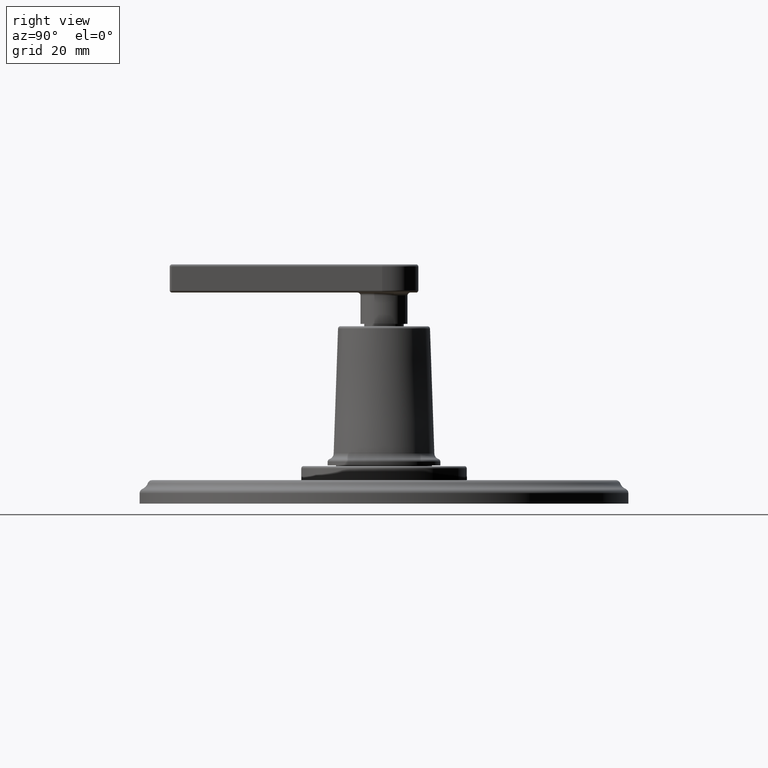
[diagram: clean part render]
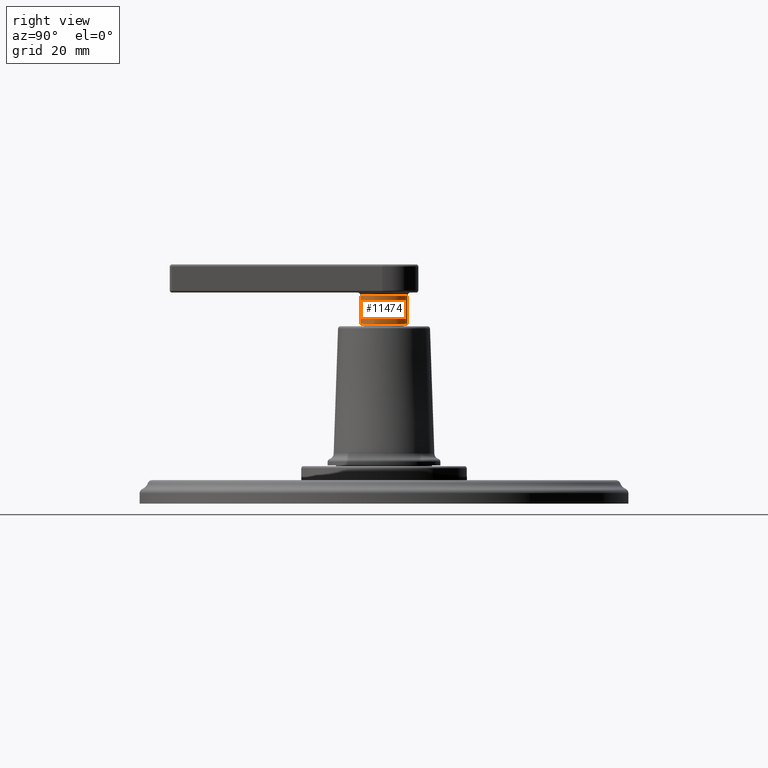
[diagram: same view with one face highlighted and labeled with its STEP entity id]
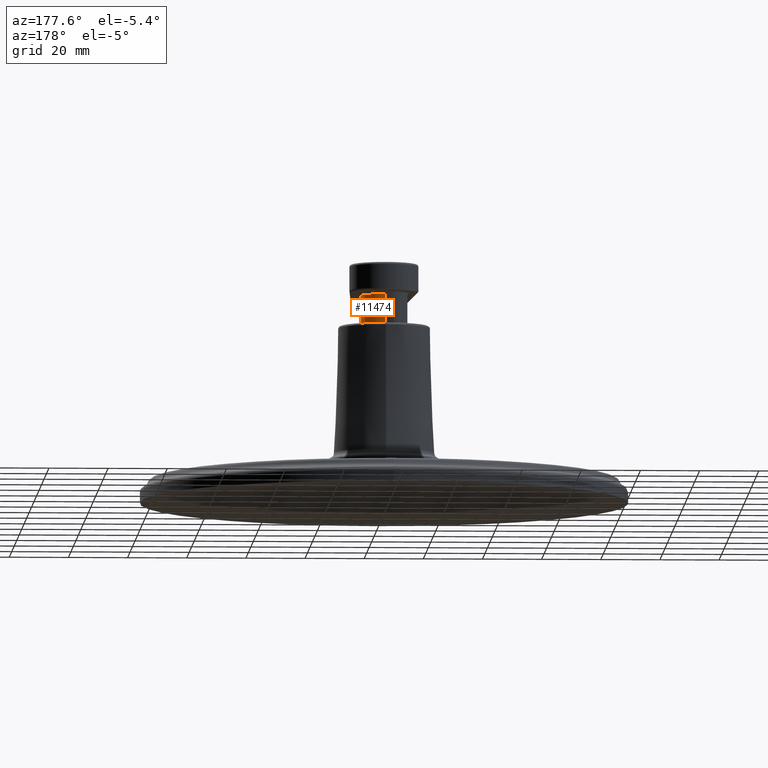
[diagram: same view with one face highlighted and labeled with its STEP entity id]
A machine part, right view. The second image highlights one B-rep face of the part: STEP entity #11474.
A second angle (auxiliary view) of the same face is appended — the face is thin or edge-on in the first view.
In plain terms, the highlighted cylindrical surface (edge-blend (fillet) strip) has radius 7.9375 mm, axis along (0, 0, -1).
Its self-contained STEP definition (entity closure, byte-faithful):
#3995=CARTESIAN_POINT('',(0.E0,0.E0,2.768E0));
#3996=DIRECTION('',(0.E0,0.E0,1.E0));
#3997=DIRECTION('',(0.E0,-1.E0,0.E0));
#3998=AXIS2_PLACEMENT_3D('',#3995,#3996,#3997);
#4000=DIRECTION('',(-3.757023223274E-12,0.E0,1.E0));
#4001=VECTOR('',#4000,3.77E-1);
#4002=CARTESIAN_POINT('',(0.E0,3.125E-1,2.391E0));
#4003=LINE('',#4002,#4001);
#4004=CARTESIAN_POINT('',(0.E0,0.E0,2.391E0));
#4005=DIRECTION('',(0.E0,0.E0,1.E0));
#4006=DIRECTION('',(0.E0,-1.E0,0.E0));
#4007=AXIS2_PLACEMENT_3D('',#4004,#4005,#4006);
#4009=DIRECTION('',(3.756627684633E-12,0.E0,1.E0));
#4010=VECTOR('',#4009,3.77E-1);
#4011=CARTESIAN_POINT('',(0.E0,-3.125E-1,2.391E0));
#4012=LINE('',#4011,#4010);
#5500=CARTESIAN_POINT('',(0.E0,-3.125E-1,2.391E0));
#5501=CARTESIAN_POINT('',(0.E0,3.125E-1,2.391E0));
#5502=VERTEX_POINT('',#5500);
#5503=VERTEX_POINT('',#5501);
#5536=CARTESIAN_POINT('',(0.E0,-3.125E-1,2.768E0));
#5537=CARTESIAN_POINT('',(0.E0,3.125E-1,2.768E0));
#5538=VERTEX_POINT('',#5536);
#5539=VERTEX_POINT('',#5537);
#11463=CARTESIAN_POINT('',(0.E0,0.E0,3.2351E0));
#11464=DIRECTION('',(0.E0,0.E0,-1.E0));
#11465=DIRECTION('',(0.E0,1.E0,0.E0));
#11466=AXIS2_PLACEMENT_3D('',#11463,#11464,#11465);
#11467=CYLINDRICAL_SURFACE('',#11466,3.125E-1);
#11468=ORIENTED_EDGE('',*,*,#11454,.T.);
#11469=ORIENTED_EDGE('',*,*,#11429,.F.);
#11470=ORIENTED_EDGE('',*,*,#11410,.F.);
#11471=ORIENTED_EDGE('',*,*,#11426,.T.);
#11472=EDGE_LOOP('',(#11468,#11469,#11470,#11471));
#11473=FACE_OUTER_BOUND('',#11472,.F.);
#11474=ADVANCED_FACE('',(#11473),#11467,.T.);
#3999=CIRCLE('',#3998,3.125E-1);
#4008=CIRCLE('',#4007,3.125E-1);
#11410=EDGE_CURVE('',#5502,#5503,#4008,.T.);
#11426=EDGE_CURVE('',#5502,#5538,#4012,.T.);
#11429=EDGE_CURVE('',#5503,#5539,#4003,.T.);
#11454=EDGE_CURVE('',#5538,#5539,#3999,.T.);